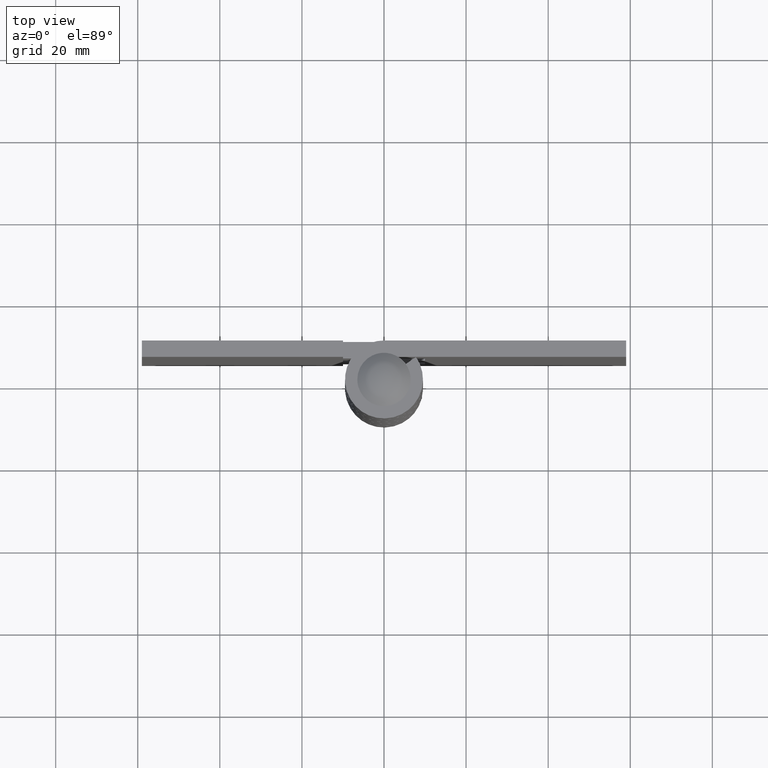
[diagram: clean part render]
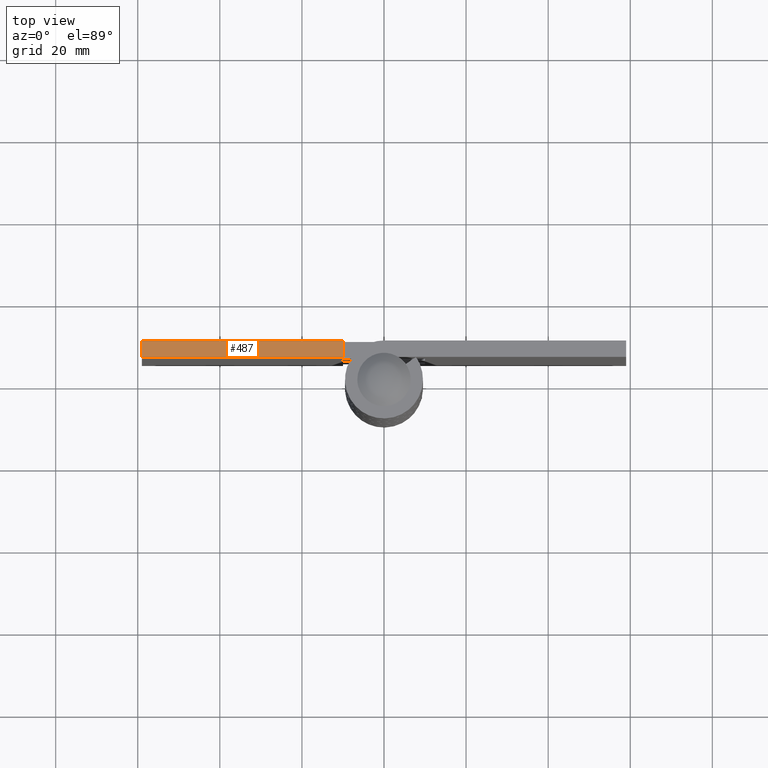
[diagram: same view with one face highlighted and labeled with its STEP entity id]
A machine part, top view. The second image highlights one B-rep face of the part: STEP entity #487.
In plain terms, the highlighted face is a freeform B-spline surface patch.
Its self-contained STEP definition (entity closure, byte-faithful):
#331=CARTESIAN_POINT('',(-10.0,5.500000000000000,127.0));
#332=VERTEX_POINT('',#331);
#347=CARTESIAN_POINT('',(-10.0,9.500000000000000,127.0));
#348=VERTEX_POINT('',#347);
#354=CARTESIAN_POINT('',(-10.0,5.500000000000000,127.0));
#355=CARTESIAN_POINT('',(-10.0,9.500000000000000,127.0));
#356=QUASI_UNIFORM_CURVE('',1,(#354,#355),.UNSPECIFIED.,.F.,.U.);
#357=EDGE_CURVE('',#332,#348,#356,.T.);
#446=CARTESIAN_POINT('',(-59.0,5.500000000000000,127.0));
#447=VERTEX_POINT('',#446);
#453=CARTESIAN_POINT('',(-59.0,9.500000000000000,127.0));
#454=VERTEX_POINT('',#453);
#455=CARTESIAN_POINT('',(-59.0,9.500000000000000,127.0));
#456=CARTESIAN_POINT('',(-59.0,5.500000000000000,127.0));
#457=QUASI_UNIFORM_CURVE('',1,(#455,#456),.UNSPECIFIED.,.F.,.U.);
#458=EDGE_CURVE('',#454,#447,#457,.T.);
#468=CARTESIAN_POINT('',(-61.447549905028502,5.300200007752776,127.0));
#469=CARTESIAN_POINT('',(-7.552448780689092,5.300200007752776,127.0));
#470=CARTESIAN_POINT('',(-61.447549905028502,9.699800099535585,127.0));
#471=CARTESIAN_POINT('',(-7.552448780689092,9.699800099535585,127.0));
#472=B_SPLINE_SURFACE_WITH_KNOTS('',1,1,((#468,#470),(#469,#471)),.UNSPECIFIED.,.F.,.F.,.U.,(2,2),(2,2),(0.0,53.895101124339412),(0.0,4.399600091782809),.UNSPECIFIED.);
#473=ORIENTED_EDGE('',*,*,#357,.T.);
#474=CARTESIAN_POINT('',(-10.0,9.500000000000000,127.0));
#475=CARTESIAN_POINT('',(-59.0,9.500000000000000,127.0));
#476=QUASI_UNIFORM_CURVE('',1,(#474,#475),.UNSPECIFIED.,.F.,.U.);
#477=EDGE_CURVE('',#348,#454,#476,.T.);
#478=ORIENTED_EDGE('',*,*,#477,.T.);
#479=ORIENTED_EDGE('',*,*,#458,.T.);
#480=CARTESIAN_POINT('',(-59.0,5.500000000000000,127.0));
#481=CARTESIAN_POINT('',(-10.0,5.500000000000000,127.0));
#482=QUASI_UNIFORM_CURVE('',1,(#480,#481),.UNSPECIFIED.,.F.,.U.);
#483=EDGE_CURVE('',#447,#332,#482,.T.);
#484=ORIENTED_EDGE('',*,*,#483,.T.);
#485=EDGE_LOOP('',(#473,#478,#479,#484));
#486=FACE_OUTER_BOUND('',#485,.T.);
#487=ADVANCED_FACE('',(#486),#472,.T.);